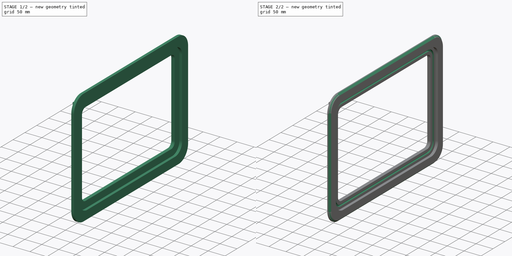
[diagram: build sequence overview — one tinted view per stage of 2, left to right]
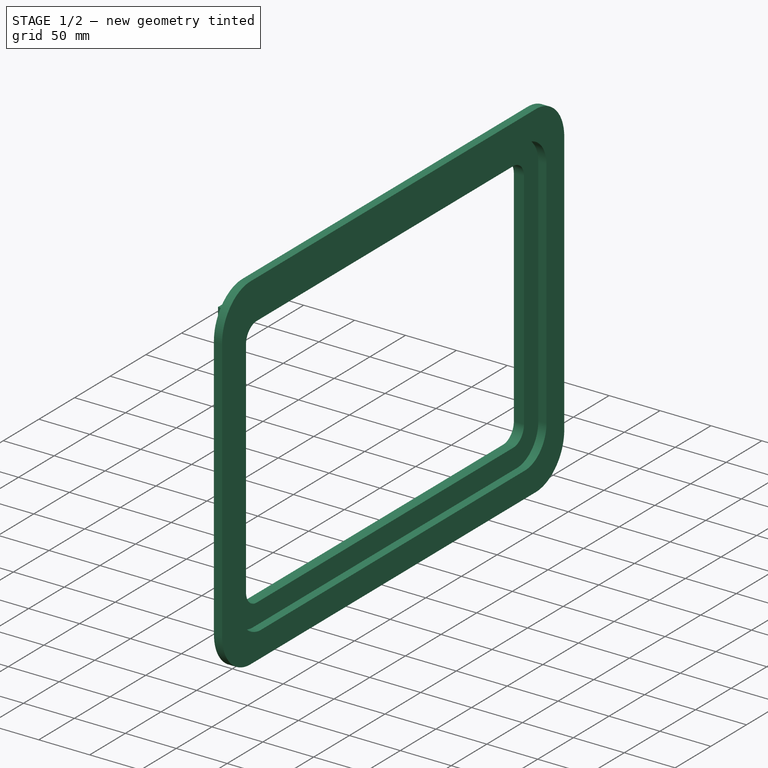
[diagram: stage 1 of 2 — iso view after this stage's code; geometry added in this stage tinted green]
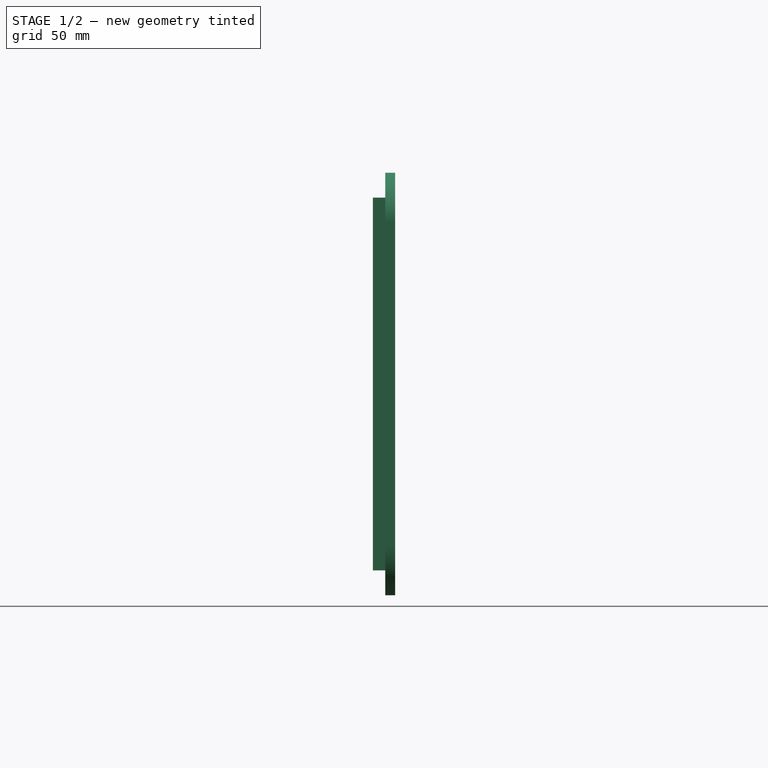
[diagram: stage 1 of 2 — front view after this stage's code; geometry added in this stage tinted green]
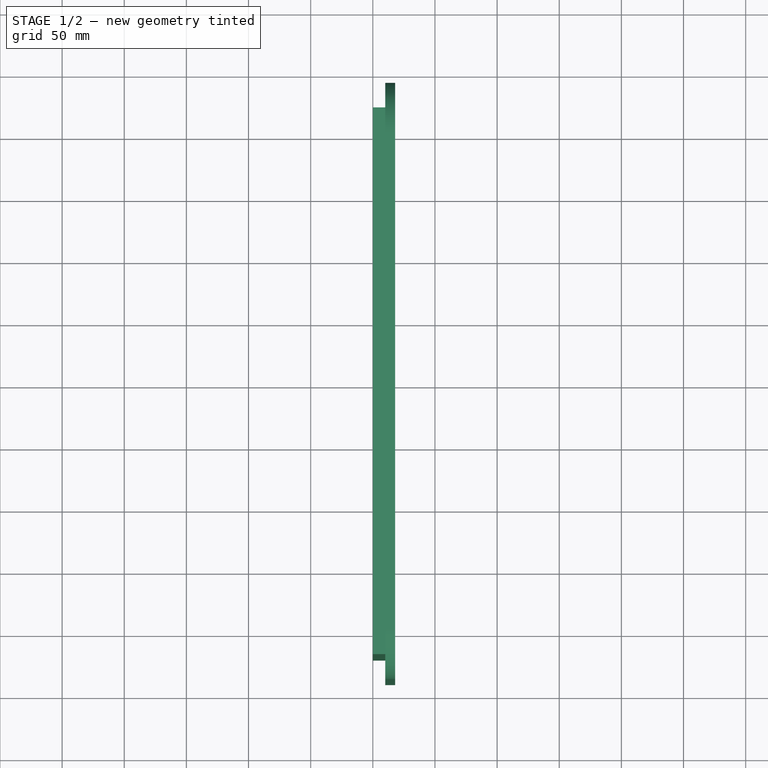
[diagram: stage 1 of 2 — top view after this stage's code; geometry added in this stage tinted green]
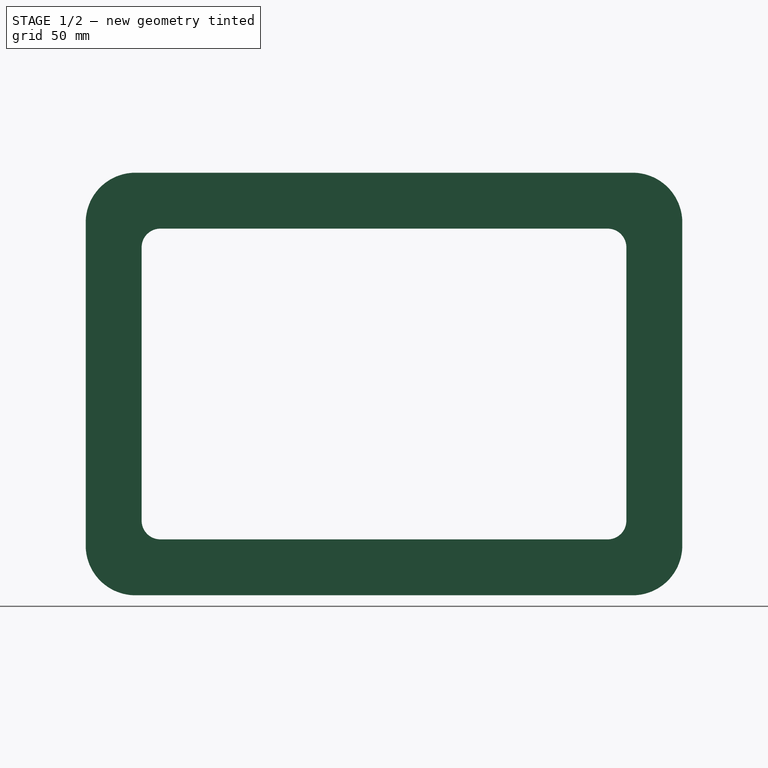
[diagram: stage 1 of 2 — right view after this stage's code; geometry added in this stage tinted green]
FCSTD DOCUMENT  (FreeCAD 0.20R29603 (Git))
Label: Fenster_440x300
License: All rights reserved
LicenseURL: http://en.wikipedia.org/wiki/All_rights_reserved
objects: Sketcher::SketchObject×3, PartDesign::Pad×2, PartDesign::Pocket×1, PartDesign::Chamfer×1, PartDesign::Body×1
note: 12 computed .brp shape members not serialized (recipe doc carries the construction recipe); baked Part::Feature solids carry a one-line shape summary decoded from their .brp

FEATURE [Sketcher::SketchObject] Sketch
  FullyConstrained = true
  MapMode = 5
  Placement = pos=(0,0,0) rot=(0.57735,0.57735,0.57735;2.0944rad)
  Support = -> [YZ_Plane]
  sketch-geometry (18):
    g0: LineSegment StartX=-220 StartY=150 StartZ=0 EndX=-220 EndY=-150 EndZ=0
    g1: LineSegment StartX=-220 StartY=-150 StartZ=0 EndX=220 EndY=-150 EndZ=0
    g2: LineSegment StartX=220 StartY=-150 StartZ=0 EndX=220 EndY=150 EndZ=0
    g3: LineSegment StartX=220 StartY=150 StartZ=0 EndX=-220 EndY=150 EndZ=0
    g4: GeomPoint X=0 Y=0 Z=0
    g5: LineSegment StartX=-195 StartY=110 StartZ=0 EndX=-195 EndY=-110 EndZ=0
    g6: LineSegment StartX=-180 StartY=-125 StartZ=0 EndX=180 EndY=-125 EndZ=0
    g7: LineSegment StartX=195 StartY=-110 StartZ=0 EndX=195 EndY=110 EndZ=0
    g8: LineSegment StartX=180 StartY=125 StartZ=0 EndX=-180 EndY=125 EndZ=0
    g9: GeomPoint X=0 Y=0 Z=0
    g10: ArcOfCircle CenterX=-180 CenterY=110 CenterZ=0 NormalX=0 NormalY=0 NormalZ=1 AngleXU=0 Radius=15 StartAngle=1.5708 EndAngle=3.14159
    g11: GeomPoint X=-195 Y=125 Z=0
    g12: ArcOfCircle CenterX=180 CenterY=110 CenterZ=0 NormalX=0 NormalY=0 NormalZ=1 AngleXU=0 Radius=15 StartAngle=1e-16 EndAngle=1.5708
    g13: GeomPoint X=195 Y=125 Z=0
    g14: ArcOfCircle CenterX=-180 CenterY=-110 CenterZ=0 NormalX=0 NormalY=0 NormalZ=1 AngleXU=0 Radius=15 StartAngle=3.14159 EndAngle=4.71239
    g15: GeomPoint X=-195 Y=-125 Z=0
    g16: ArcOfCircle CenterX=180 CenterY=-110 CenterZ=0 NormalX=0 NormalY=0 NormalZ=1 AngleXU=0 Radius=15 StartAngle=4.71239 EndAngle=6.28319
    g17: GeomPoint X=195 Y=-125 Z=0
  constraints (40):
    c: Coincident(g0,g1)
    c: Coincident(g1,g2)
    c: Coincident(g2,g3)
    c: Coincident(g3,g0)
    c: Horizontal(g1)
    c: Horizontal(g3)
    c: Vertical(g0)
    c: Vertical(g2)
    c: Symmetric(g1,g0,g4)
    c: Coincident(g4,g-1)
    c: Distance(g3) = 440
    c: Distance(g0) = 300
    c: Horizontal(g6)
    c: Horizontal(g8)
    c: Vertical(g5)
    c: Vertical(g7)
    c: Symmetric(g17,g11,g9)
    c: Coincident(g9,g4)
    c: Distance(g17,g2) = 25
    c: Distance(g17,g1) = 25
    c: PointOnObject(g11,g5)
    c: PointOnObject(g11,g8)
    c: Tangent(g5,g10) = -1.5708
    c: Tangent(g8,g10) = -1.5708
    c: PointOnObject(g13,g7)
    c: PointOnObject(g13,g8)
    c: Tangent(g7,g12) = -1.5708
    c: Tangent(g8,g12) = -1.5708
    c: PointOnObject(g15,g5)
    c: PointOnObject(g15,g6)
    c: Tangent(g5,g14) = -1.5708
    c: Tangent(g6,g14) = -1.5708
    c: PointOnObject(g17,g6)
    c: PointOnObject(g17,g7)
    c: Tangent(g6,g16) = -1.5708
    c: Tangent(g7,g16) = -1.5708
    c: Equal(g10,g12)
    c: Equal(g12,g14)
    c: Equal(g14,g16)
    c: Radius(g12) = 15
FEATURE [PartDesign::Pad] Pad
  Direction = (1,-2e-16,3e-16)
  Length = 10
  Length2 = 10
  Placement = pos=(0,0,0) rot=(0.57735,0.57735,0.57735;2.0944rad)
  Profile = -> Sketch
  ReferenceAxis = -> Sketch [N_Axis]
  Type = 0
FEATURE [Sketcher::SketchObject] Sketch001
  ExternalGeometry = -> [Pad]
  FullyConstrained = true
  MapMode = 5
  Placement = pos=(10,-4.4e-15,3.3e-15) rot=(0.57735,0.57735,0.57735;2.0944rad)
  Support = -> [Pad]
  sketch-geometry (26):
    g0: LineSegment StartX=-215 StartY=115 StartZ=0 EndX=-215 EndY=-115 EndZ=0
    g1: LineSegment StartX=-185 StartY=-145 StartZ=0 EndX=185 EndY=-145 EndZ=0
    g2: LineSegment StartX=215 StartY=-115 StartZ=0 EndX=215 EndY=115 EndZ=0
    g3: LineSegment StartX=185 StartY=145 StartZ=0 EndX=-185 EndY=145 EndZ=0
    g4: GeomPoint X=0 Y=0 Z=0
    g5: LineSegment StartX=-240 StartY=130 StartZ=0 EndX=-240 EndY=-130 EndZ=0
    g6: LineSegment StartX=-200 StartY=-170 StartZ=0 EndX=200 EndY=-170 EndZ=0
    g7: LineSegment StartX=240 StartY=-130 StartZ=0 EndX=240 EndY=130 EndZ=0
    g8: LineSegment StartX=200 StartY=170 StartZ=0 EndX=-200 EndY=170 EndZ=0
    g9: GeomPoint X=0 Y=0 Z=0
    g10: ArcOfCircle CenterX=-200 CenterY=130 CenterZ=0 NormalX=0 NormalY=0 NormalZ=1 AngleXU=0 Radius=40 StartAngle=1.5708 EndAngle=3.14159
    g11: GeomPoint X=-240 Y=170 Z=0
    g12: ArcOfCircle CenterX=200 CenterY=130 CenterZ=0 NormalX=0 NormalY=0 NormalZ=1 AngleXU=0 Radius=40 StartAngle=4e-16 EndAngle=1.5708
    g13: GeomPoint X=240 Y=170 Z=0
    g14: ArcOfCircle CenterX=185 CenterY=115 CenterZ=0 NormalX=0 NormalY=0 NormalZ=1 AngleXU=0 Radius=30 StartAngle=0 EndAngle=1.5708
    g15: GeomPoint X=215 Y=145 Z=0
    g16: ArcOfCircle CenterX=185 CenterY=-115 CenterZ=0 NormalX=0 NormalY=0 NormalZ=1 AngleXU=0 Radius=30 StartAngle=4.71239 EndAngle=6.28319
    g17: GeomPoint X=215 Y=-145 Z=0
    g18: ArcOfCircle CenterX=200 CenterY=-130 CenterZ=0 NormalX=0 NormalY=0 NormalZ=1 AngleXU=0 Radius=40 StartAngle=4.71239 EndAngle=6.28319
    g19: GeomPoint X=240 Y=-170 Z=0
    g20: ArcOfCircle CenterX=-200 CenterY=-130 CenterZ=0 NormalX=0 NormalY=0 NormalZ=1 AngleXU=0 Radius=40 StartAngle=3.14159 EndAngle=4.71239
    g21: GeomPoint X=-240 Y=-170 Z=0
    g22: ArcOfCircle CenterX=-185 CenterY=-115 CenterZ=0 NormalX=0 NormalY=0 NormalZ=1 AngleXU=0 Radius=30 StartAngle=3.14159 EndAngle=4.71239
    g23: GeomPoint X=-215 Y=-145 Z=0
    g24: ArcOfCircle CenterX=-185 CenterY=115 CenterZ=0 NormalX=0 NormalY=0 NormalZ=1 AngleXU=0 Radius=30 StartAngle=1.5708 EndAngle=3.14159
    g25: GeomPoint X=-215 Y=145 Z=0
  constraints (56):
    c: Horizontal(g1)
    c: Horizontal(g3)
    c: Vertical(g0)
    c: Vertical(g2)
    c: Symmetric(g17,g25,g4)
    c: Coincident(g4,g-1)
    c: Horizontal(g6)
    c: Horizontal(g8)
    c: Vertical(g5)
    c: Vertical(g7)
    c: Symmetric(g19,g11,g9)
    c: Coincident(g9,g4)
    c: Distance(g17,g-3) = 5
    c: Distance(g17,g-4) = 5
    c: Distance(g17,g7) = 25
    c: Distance(g17,g6) = 25
    c: PointOnObject(g11,g5)
    c: PointOnObject(g11,g8)
    c: Tangent(g5,g10) = -1.5708
    c: Tangent(g8,g10) = -1.5708
    c: PointOnObject(g13,g7)
    c: PointOnObject(g13,g8)
    c: Tangent(g7,g12) = -1.5708
    c: Tangent(g8,g12) = -1.5708
    c: PointOnObject(g15,g2)
    c: PointOnObject(g15,g3)
    c: Tangent(g2,g14) = -1.5708
    c: Tangent(g3,g14) = -1.5708
    c: PointOnObject(g17,g1)
    c: PointOnObject(g17,g2)
    c: Tangent(g1,g16) = -1.5708
    c: Tangent(g2,g16) = -1.5708
    c: PointOnObject(g19,g6)
    c: PointOnObject(g19,g7)
    c: Tangent(g6,g18) = -1.5708
    c: Tangent(g7,g18) = -1.5708
    c: PointOnObject(g21,g5)
    c: PointOnObject(g21,g6)
    c: Tangent(g5,g20) = -1.5708
    c: Tangent(g6,g20) = -1.5708
    c: PointOnObject(g23,g0)
    c: PointOnObject(g23,g1)
    c: Tangent(g0,g22) = -1.5708
    c: Tangent(g1,g22) = -1.5708
    c: PointOnObject(g25,g0)
    c: PointOnObject(g25,g3)
    c: Tangent(g0,g24) = -1.5708
    c: Tangent(g3,g24) = -1.5708
    c: Equal(g24,g14)
    c: Equal(g14,g16)
    c: Equal(g16,g22)
    c: Radius(g14) = 30
    c: Equal(g10,g12)
    c: Equal(g12,g20)
    c: Equal(g20,g18)
    c: Radius(g10) = 40
FEATURE [PartDesign::Pad] Pad001
  BaseFeature = -> Pad
  Direction = (1,-4e-16,4e-16)
  Length = 8
  Length2 = 10
  Placement = pos=(0,0,0) rot=(0.57735,0.57735,0.57735;2.0944rad)
  Profile = -> Sketch001
  ReferenceAxis = -> Sketch001 [N_Axis]
  Type = 0
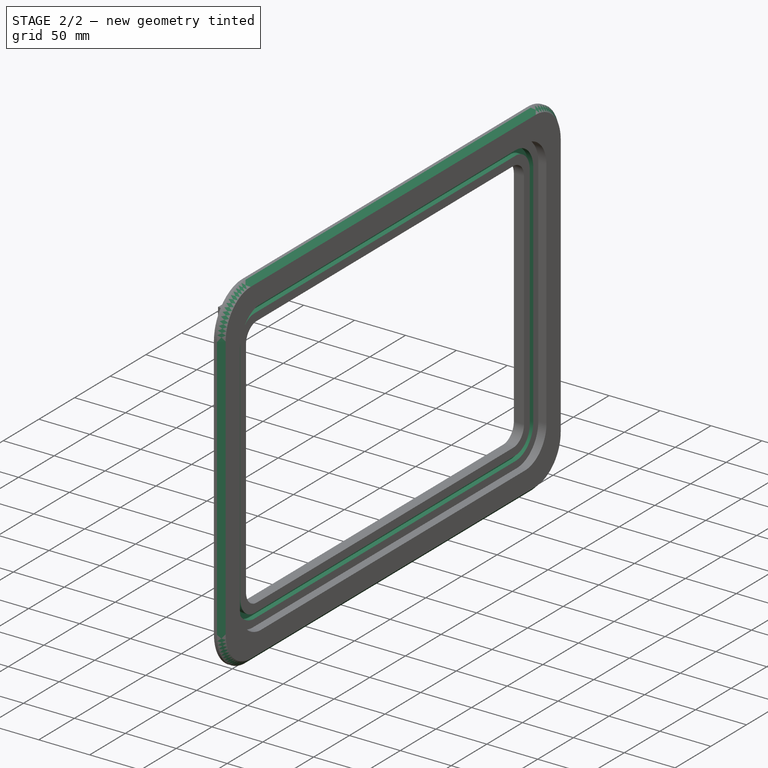
[diagram: stage 2 of 2 — iso view after this stage's code; geometry added in this stage tinted green]
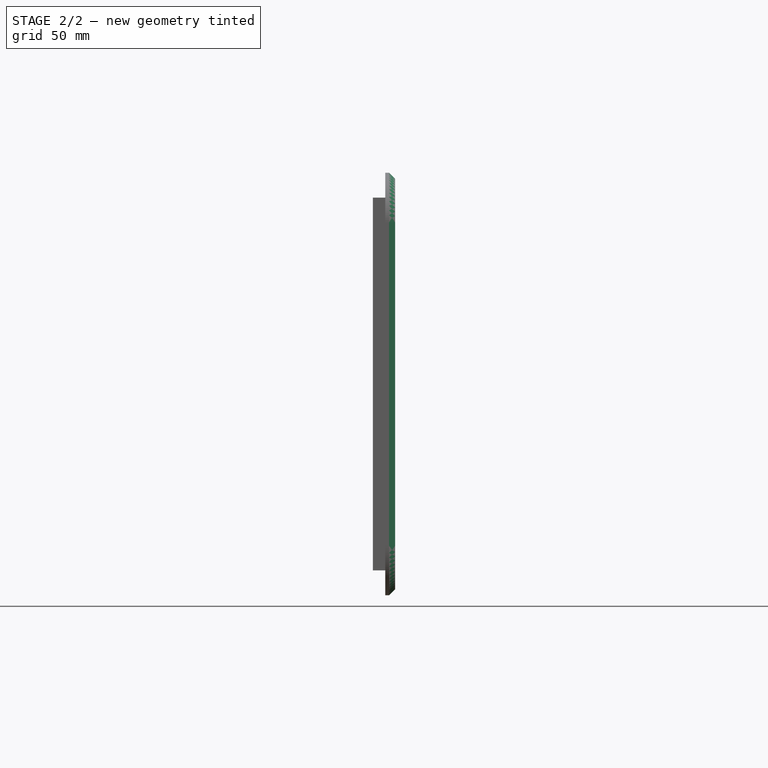
[diagram: stage 2 of 2 — front view after this stage's code; geometry added in this stage tinted green]
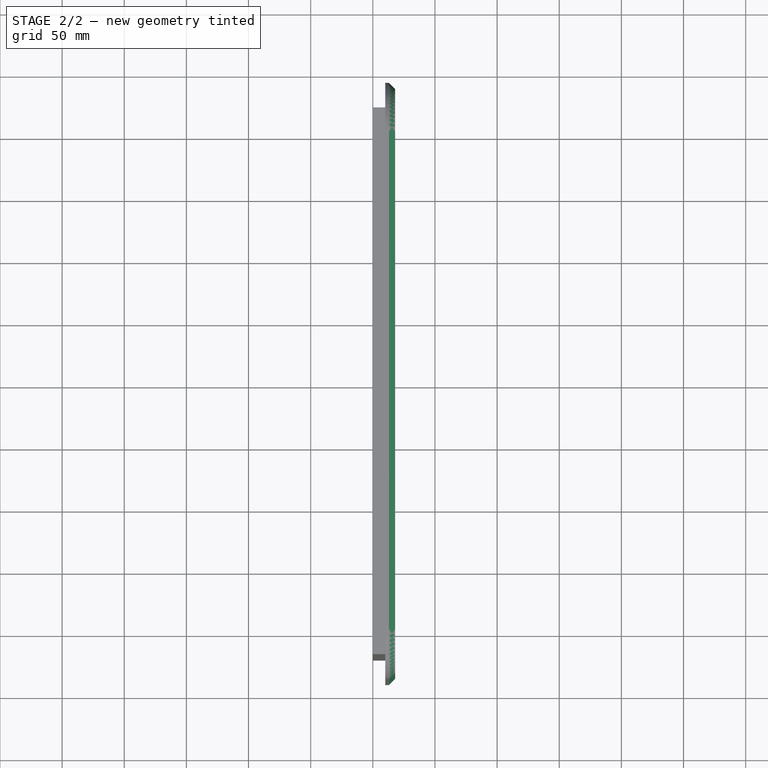
[diagram: stage 2 of 2 — top view after this stage's code; geometry added in this stage tinted green]
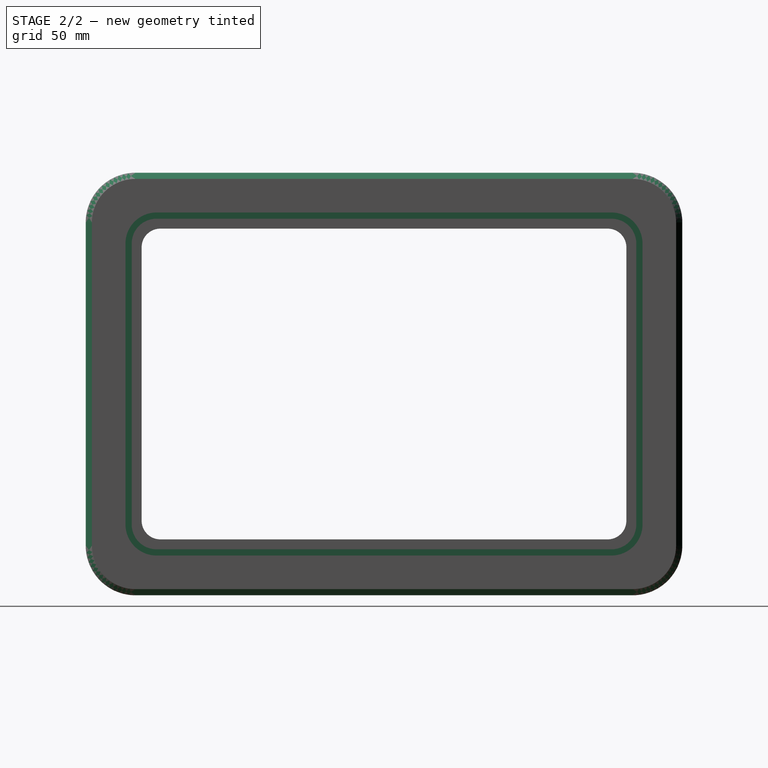
[diagram: stage 2 of 2 — right view after this stage's code; geometry added in this stage tinted green]
FEATURE [Sketcher::SketchObject] Sketch002
  ExternalGeometry = -> [Pad001]
  FullyConstrained = true
  MapMode = 5
  Placement = pos=(10,-6.7e-15,4.4e-15) rot=(0.57735,0.57735,0.57735;2.0944rad)
  Support = -> [Pad001]
  sketch-geometry (26):
    g0: LineSegment StartX=-208 StartY=113 StartZ=0 EndX=-208 EndY=-113 EndZ=0
    g1: LineSegment StartX=-183 StartY=-138 StartZ=0 EndX=183 EndY=-138 EndZ=0
    g2: LineSegment StartX=208 StartY=-113 StartZ=0 EndX=208 EndY=113 EndZ=0
    g3: LineSegment StartX=183 StartY=138 StartZ=0 EndX=-183 EndY=138 EndZ=0
    g4: GeomPoint X=0 Y=0 Z=0
    g5: LineSegment StartX=-203 StartY=113 StartZ=0 EndX=-203 EndY=-113 EndZ=0
    g6: LineSegment StartX=-183 StartY=-133 StartZ=0 EndX=183 EndY=-133 EndZ=0
    g7: LineSegment StartX=203 StartY=-113 StartZ=0 EndX=203 EndY=113 EndZ=0
    g8: LineSegment StartX=183 StartY=133 StartZ=0 EndX=-183 EndY=133 EndZ=0
    g9: GeomPoint X=0 Y=0 Z=0
    g10: ArcOfCircle CenterX=-183 CenterY=113 CenterZ=0 NormalX=0 NormalY=0 NormalZ=1 AngleXU=0 Radius=25 StartAngle=1.5708 EndAngle=3.14159
    g11: GeomPoint X=-208 Y=138 Z=0
    g12: ArcOfCircle CenterX=-183 CenterY=113 CenterZ=0 NormalX=0 NormalY=0 NormalZ=1 AngleXU=0 Radius=20 StartAngle=1.5708 EndAngle=3.14159
    g13: GeomPoint X=-203 Y=133 Z=0
    g14: ArcOfCircle CenterX=-183 CenterY=-113 CenterZ=0 NormalX=0 NormalY=0 NormalZ=1 AngleXU=0 Radius=25 StartAngle=3.14159 EndAngle=4.71239
    g15: GeomPoint X=-208 Y=-138 Z=0
    g16: ArcOfCircle CenterX=-183 CenterY=-113 CenterZ=0 NormalX=0 NormalY=0 NormalZ=1 AngleXU=0 Radius=20 StartAngle=3.14159 EndAngle=4.71239
    g17: GeomPoint X=-203 Y=-133 Z=0
    g18: ArcOfCircle CenterX=183 CenterY=-113 CenterZ=0 NormalX=0 NormalY=0 NormalZ=1 AngleXU=0 Radius=20 StartAngle=4.71239 EndAngle=6.28319
    g19: GeomPoint X=203 Y=-133 Z=0
    g20: ArcOfCircle CenterX=183 CenterY=-113 CenterZ=0 NormalX=0 NormalY=0 NormalZ=1 AngleXU=0 Radius=25 StartAngle=4.71239 EndAngle=6.28319
    g21: GeomPoint X=208 Y=-138 Z=0
    g22: ArcOfCircle CenterX=183 CenterY=113 CenterZ=0 NormalX=0 NormalY=0 NormalZ=1 AngleXU=0 Radius=20 StartAngle=-8e-15 EndAngle=1.5708
    g23: GeomPoint X=203 Y=133 Z=0
    g24: ArcOfCircle CenterX=183 CenterY=113 CenterZ=0 NormalX=0 NormalY=0 NormalZ=1 AngleXU=0 Radius=25 StartAngle=2e-16 EndAngle=1.5708
    g25: GeomPoint X=208 Y=138 Z=0
  constraints (52):
    c: Horizontal(g1)
    c: Horizontal(g3)
    c: Vertical(g0)
    c: Vertical(g2)
    c: Symmetric(g21,g11,g4)
    c: Coincident(g4,g-1)
    c: Horizontal(g6)
    c: Horizontal(g8)
    c: Vertical(g5)
    c: Symmetric(g19,g13,g9)
    c: Coincident(g9,g4)
    c: PointOnObject(g11,g0)
    c: PointOnObject(g11,g3)
    c: Tangent(g0,g10) = -1.5708
    c: Tangent(g3,g10) = -1.5708
    c: PointOnObject(g13,g5)
    c: PointOnObject(g13,g8)
    c: Tangent(g5,g12) = -1.5708
    c: Tangent(g8,g12) = -1.5708
    c: PointOnObject(g15,g0)
    c: PointOnObject(g15,g1)
    c: Tangent(g0,g14) = -1.5708
    c: Tangent(g1,g14) = -1.5708
    c: PointOnObject(g17,g5)
    c: PointOnObject(g17,g6)
    c: Tangent(g5,g16) = -1.5708
    c: Tangent(g6,g16) = -1.5708
    c: PointOnObject(g19,g6)
    c: PointOnObject(g19,g7)
    c: Tangent(g6,g18) = -1.5708
    c: Tangent(g7,g18) = -1.5708
    c: Tangent(g1,g20) = -1.5708
    c: Tangent(g2,g20) = -1.5708
    c: PointOnObject(g23,g7)
    c: PointOnObject(g23,g8)
    c: Tangent(g7,g22) = -1.5708
    c: Tangent(g8,g22) = -1.5708
    c: PointOnObject(g25,g2)
    c: PointOnObject(g25,g3)
    c: Tangent(g2,g24) = -1.5708
    c: Tangent(g3,g24) = -1.5708
    c: Distance(g2,g7) = 5
    c: Coincident(g10,g12)
    c: Coincident(g22,g24)
    c: Coincident(g20,g18)
    c: Coincident(g14,g16)
    c: Distance(g5,g-3) = 8
    c: Equal(g10,g24)
    c: Equal(g24,g20)
    c: Equal(g20,g14)
    c: Radius(g24) = 25
    c: Distance(g6,g-4) = 8
FEATURE [PartDesign::Pocket] Pocket
  BaseFeature = -> Pad001
  Direction = (-1,9e-16,-6e-16)
  Length = 5
  Length2 = 5
  Placement = pos=(0,0,0) rot=(0.57735,0.57735,0.57735;2.0944rad)
  Profile = -> Sketch002
  ReferenceAxis = -> Sketch002 [N_Axis]
  Type = 0
FEATURE [PartDesign::Chamfer] Chamfer
  Angle = 45
  Base = -> Pocket [Edge47,Edge49,Edge53,Edge51,Edge55,Edge60,Edge59,Edge57]
  BaseFeature = -> Pocket
  ChamferType = 0
  FlipDirection = false
  Placement = pos=(0,0,0) rot=(0.57735,0.57735,0.57735;2.0944rad)
  Size = 5
  Size2 = 1
  SupportTransform = false
  UseAllEdges = false
FEATURE [PartDesign::Body] Body
  Group = -> [Sketch,Pad,Sketch001,Pad001,Sketch002,Pocket,Chamfer]
  Origin = -> Origin
  Tip = -> Chamfer
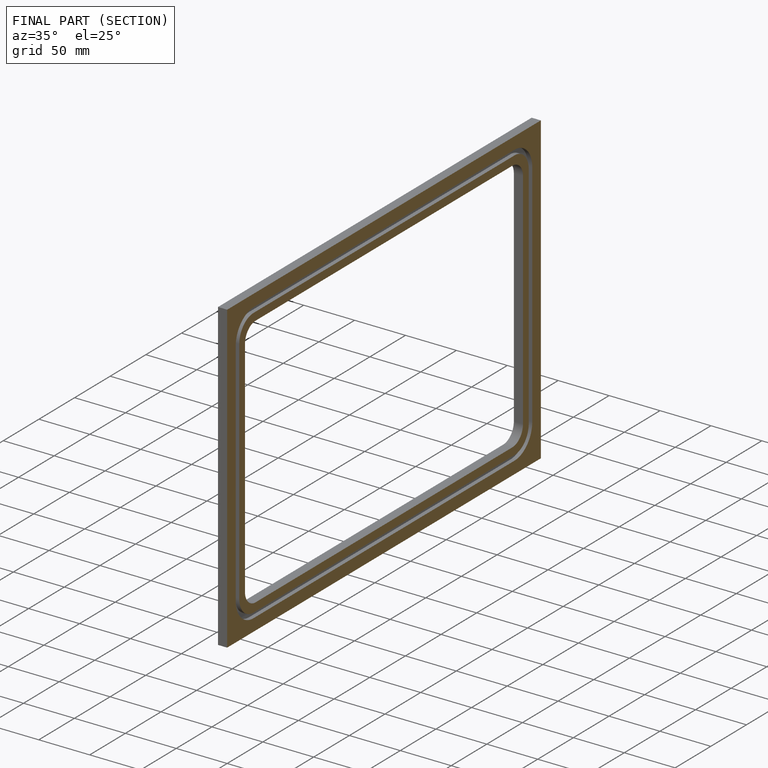
[diagram: finished part — half-section view (interior)]
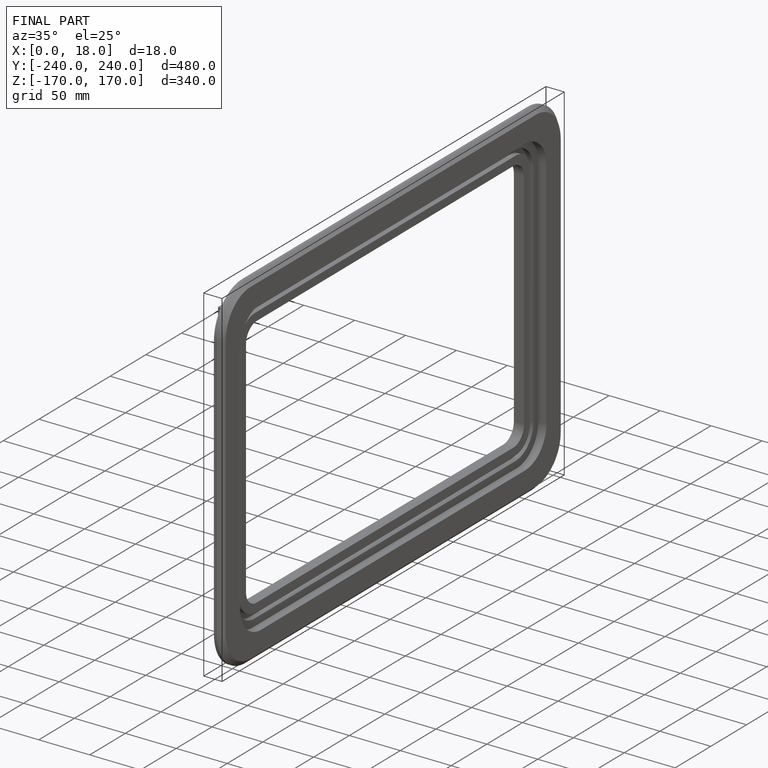
[diagram: finished part — iso view with bounding-box wireframe]
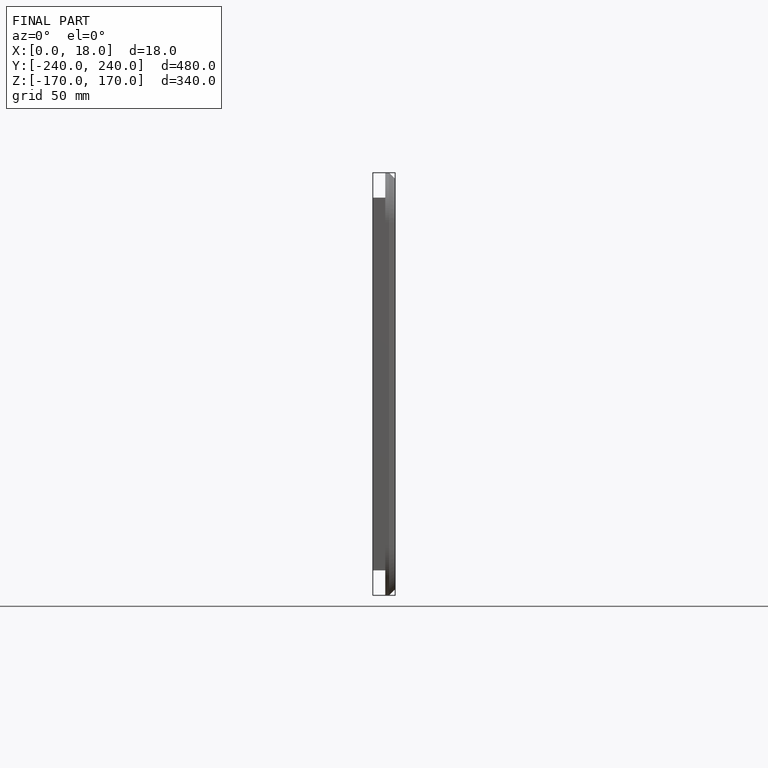
[diagram: finished part — front view with bounding-box wireframe]
